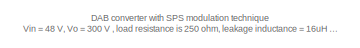
[diagram: root canvas - part 1/3, top left region]
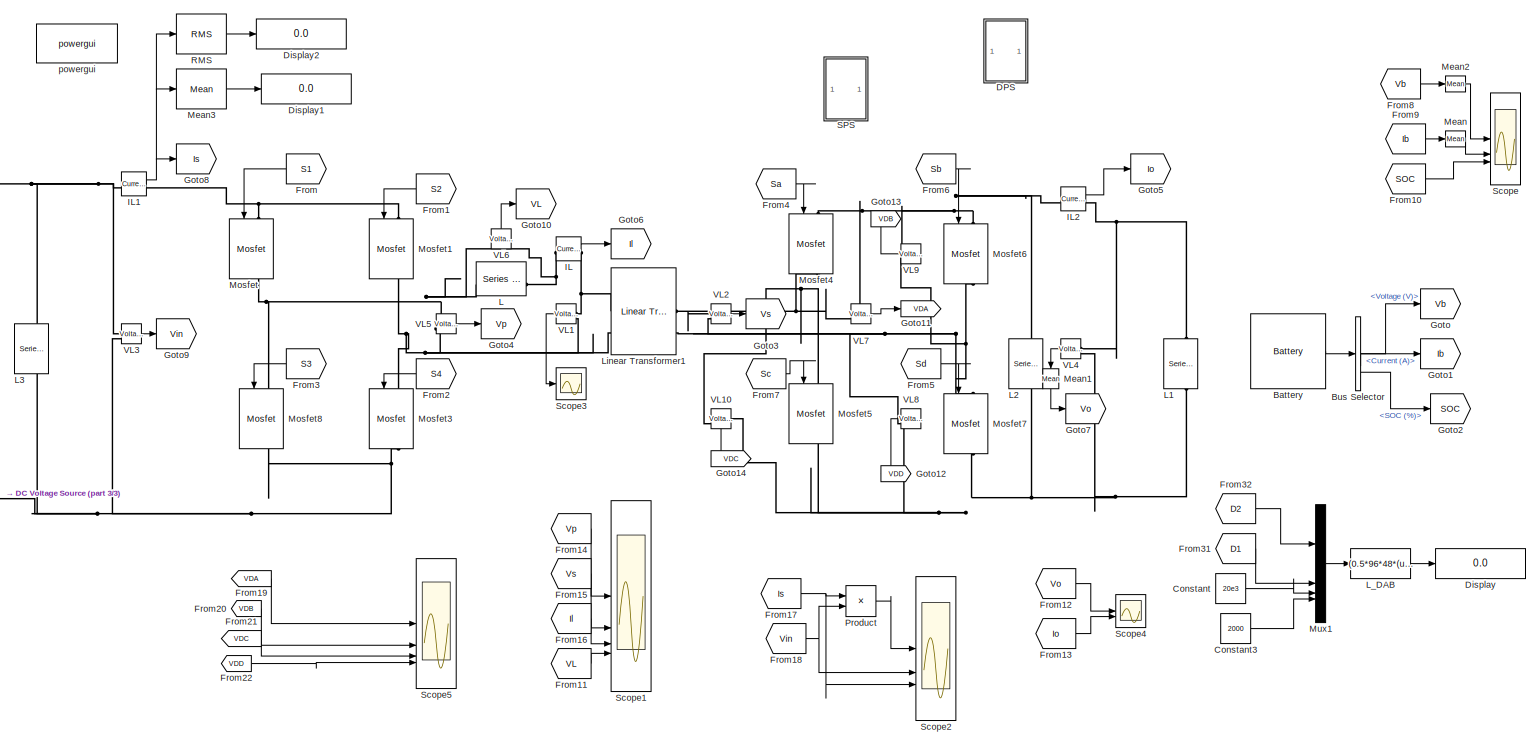
[diagram: root canvas - part 2/3, most of the canvas]
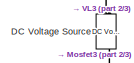
[diagram: root canvas - part 3/3, middle left region]
MODEL slx_aafc65f4591c
KIND model
CONFIG AbsTol = auto
CONFIG EnableMultiTasking = off
CONFIG FixedStep = auto
CONFIG MaxStep = auto
CONFIG MinStep = auto
CONFIG RelTol = 1e-3
CONFIG SampleTimeConstraint = Unconstrained
CONFIG SolverName = VariableStepAuto
CONFIG StartTime = 0.0
CONFIG StopTime = 5
BLOCK [Reference] Battery  REF=spsBatteryLib/Battery
  Commented = on
  SourceBlock = spsBatteryLib/Battery
  SourceType = Battery
BLOCK [BusSelector] Bus Selector
  Commented = on
  OutputSignals = Voltage (V),Current (A),SOC (%)
BLOCK [Constant] Constant
  Commented = on
  Value = 20e3
BLOCK [Constant] Constant3
  Commented = on
  Value = 2000
BLOCK [Reference] DC Voltage Source  REF=spsDCVoltageSourceLib/DC Voltage Source
  SourceBlock = spsDCVoltageSourceLib/DC Voltage Source
  SourceType = DC Voltage Source
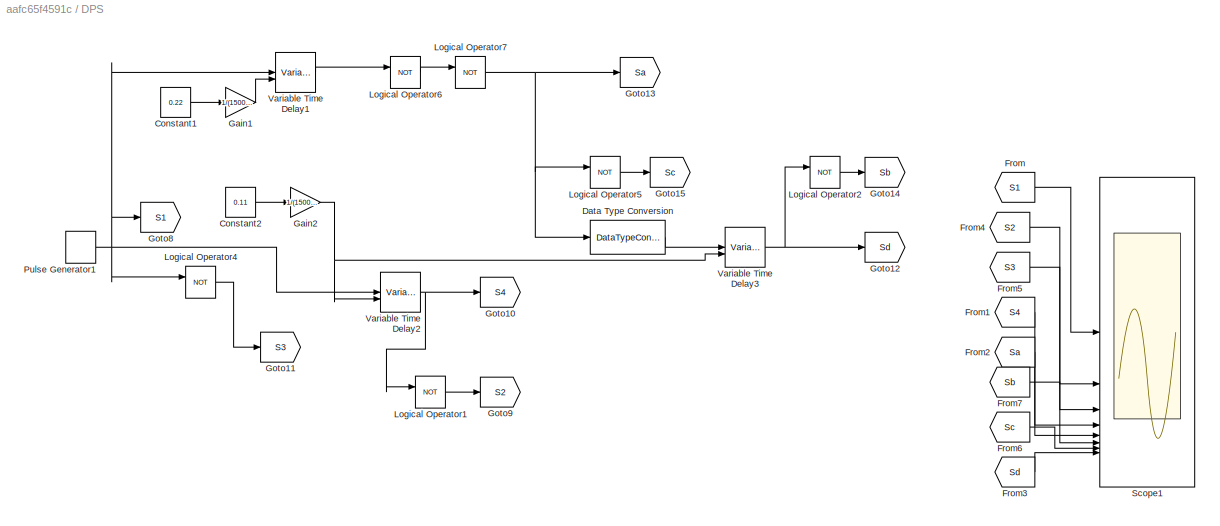
BLOCK [SubSystem] DPS
  Commented = on
BLOCK [Constant] DPS/Constant1
  Value = 0.22
BLOCK [Constant] DPS/Constant2
  Value = 0.11
BLOCK [DataTypeConversion] DPS/Data Type Conversion
  RndMeth = Floor
  SaturateOnIntegerOverflow = off
BLOCK [From] DPS/From
  GotoTag = S1
  NameLocation = top
  TagVisibility = global
BLOCK [From] DPS/From1
  GotoTag = S4
  TagVisibility = global
BLOCK [From] DPS/From2
  GotoTag = Sa
  TagVisibility = global
BLOCK [From] DPS/From3
  GotoTag = Sd
  TagVisibility = global
BLOCK [From] DPS/From4
  GotoTag = S2
  TagVisibility = global
BLOCK [From] DPS/From5
  GotoTag = S3
  TagVisibility = global
BLOCK [From] DPS/From6
  GotoTag = Sc
  TagVisibility = global
BLOCK [From] DPS/From7
  GotoTag = Sb
  TagVisibility = global
BLOCK [Gain] DPS/Gain1
  Gain = 1/(15000*2)
BLOCK [Gain] DPS/Gain2
  Gain = 1/(15000*2)
BLOCK [Goto] DPS/Goto10
  GotoTag = S4
  TagVisibility = global
BLOCK [Goto] DPS/Goto11
  GotoTag = S3
  TagVisibility = global
BLOCK [Goto] DPS/Goto12
  GotoTag = Sd
  TagVisibility = global
BLOCK [Goto] DPS/Goto13
  GotoTag = Sa
  TagVisibility = global
BLOCK [Goto] DPS/Goto14
  GotoTag = Sb
  TagVisibility = global
BLOCK [Goto] DPS/Goto15
  GotoTag = Sc
  TagVisibility = global
BLOCK [Goto] DPS/Goto8
  GotoTag = S1
  TagVisibility = global
BLOCK [Goto] DPS/Goto9
  GotoTag = S2
  TagVisibility = global
BLOCK [Logic] DPS/Logical Operator1
  AllPortsSameDT = off
  Operator = NOT
  OutDataTypeStr = boolean
BLOCK [Logic] DPS/Logical Operator2
  AllPortsSameDT = off
  Operator = NOT
  OutDataTypeStr = boolean
BLOCK [Logic] DPS/Logical Operator4
  AllPortsSameDT = off
  Operator = NOT
  OutDataTypeStr = boolean
BLOCK [Logic] DPS/Logical Operator5
  AllPortsSameDT = off
  Operator = NOT
  OutDataTypeStr = boolean
BLOCK [Logic] DPS/Logical Operator6
  AllPortsSameDT = off
  Operator = NOT
  OutDataTypeStr = boolean
BLOCK [Logic] DPS/Logical Operator7
  AllPortsSameDT = off
  Operator = NOT
  OutDataTypeStr = boolean
BLOCK [DiscretePulseGenerator] DPS/Pulse Generator1
  Period = 1/(15000*2)
  PulseType = Time based
  PulseWidth = 50
BLOCK [Scope] DPS/Scope1
  Floating = off
  NumInputPorts = 8
  ScopeSpecificationString = Simulink.scopes.TimeScopeBlockCfg('CurrentConfiguration', extmgr.ConfigurationSet(extmgr.Configuration('Core','General UI',true),extmgr.Configuration('Core','Source UI',true),extmgr.Configuration('Sources','WiredSimulink',true,'DataLoggingVariableName','ScopeData1'),extmgr.Configuration('Visuals','Time Domain',true,'SerializedDisplays',{struct('MinYLimReal','-0.125','MaxYLimReal','1.125','YLabelRe...<+3911ch>
BLOCK [VariableTransportDelay] DPS/Variable Time Delay1
  MaximumDelay = 10
BLOCK [VariableTransportDelay] DPS/Variable Time Delay2
  MaximumDelay = 10
BLOCK [VariableTransportDelay] DPS/Variable Time Delay3
  MaximumDelay = 10
BLOCK [Display] Display
  Commented = on
  Decimation = 1
BLOCK [Display] Display1
  Decimation = 1
BLOCK [Display] Display2
  Decimation = 1
BLOCK [From] From
  GotoTag = S1
  NameLocation = top
  TagVisibility = global
BLOCK [From] From1
  GotoTag = S2
  NameLocation = top
  TagVisibility = global
BLOCK [From] From10
  Commented = on
  GotoTag = SOC
  TagVisibility = global
BLOCK [From] From11
  GotoTag = VL
  TagVisibility = global
BLOCK [From] From12
  GotoTag = Vo
  TagVisibility = global
BLOCK [From] From13
  GotoTag = Io
  TagVisibility = global
BLOCK [From] From14
  GotoTag = Vp
  NameLocation = top
  TagVisibility = global
BLOCK [From] From15
  GotoTag = Vs
  TagVisibility = global
BLOCK [From] From16
  GotoTag = Il
  TagVisibility = global
BLOCK [From] From17
  GotoTag = Is
  TagVisibility = global
BLOCK [From] From18
  GotoTag = Vin
  TagVisibility = global
BLOCK [From] From19
  GotoTag = VDA
BLOCK [From] From2
  GotoTag = S4
  NameLocation = top
  TagVisibility = global
BLOCK [From] From20
  GotoTag = VDB
BLOCK [From] From21
  GotoTag = VDC
BLOCK [From] From22
  GotoTag = VDD
BLOCK [From] From3
  GotoTag = S3
  NameLocation = top
  TagVisibility = global
BLOCK [From] From31
  Commented = on
  GotoTag = D1
  TagVisibility = global
BLOCK [From] From32
  Commented = on
  GotoTag = D2
  TagVisibility = global
BLOCK [From] From4
  GotoTag = Sa
  TagVisibility = global
BLOCK [From] From5
  GotoTag = Sd
  TagVisibility = global
BLOCK [From] From6
  GotoTag = Sb
  TagVisibility = global
BLOCK [From] From7
  GotoTag = Sc
  TagVisibility = global
BLOCK [From] From8
  Commented = on
  GotoTag = Vb
  TagVisibility = global
BLOCK [From] From9
  Commented = on
  GotoTag = Ib
  TagVisibility = global
BLOCK [Goto] Goto
  Commented = on
  GotoTag = Vb
  TagVisibility = global
BLOCK [Goto] Goto1
  Commented = on
  GotoTag = Ib
  TagVisibility = global
BLOCK [Goto] Goto10
  GotoTag = VL
  TagVisibility = global
BLOCK [Goto] Goto11
  GotoTag = VDA
BLOCK [Goto] Goto12
  GotoTag = VDD
BLOCK [Goto] Goto13
  GotoTag = VDB
BLOCK [Goto] Goto14
  GotoTag = VDC
BLOCK [Goto] Goto2
  Commented = on
  GotoTag = SOC
  TagVisibility = global
BLOCK [Goto] Goto3
  GotoTag = Vs
  TagVisibility = global
BLOCK [Goto] Goto4
  GotoTag = Vp
  TagVisibility = global
BLOCK [Goto] Goto5
  GotoTag = Io
  TagVisibility = global
BLOCK [Goto] Goto6
  GotoTag = Il
  TagVisibility = global
BLOCK [Goto] Goto7
  GotoTag = Vo
  TagVisibility = global
BLOCK [Goto] Goto8
  GotoTag = Is
  TagVisibility = global
BLOCK [Goto] Goto9
  GotoTag = Vin
  TagVisibility = global
BLOCK [Reference] IL  REF=spsCurrentMeasurementLib/Current Measurement
  SourceBlock = spsCurrentMeasurementLib/Current Measurement
  SourceType = Current Measurement
  UserDataPersistent = on
BLOCK [Reference] IL1  REF=spsCurrentMeasurementLib/Current Measurement
  SourceBlock = spsCurrentMeasurementLib/Current Measurement
  SourceType = Current Measurement
  UserDataPersistent = on
BLOCK [Reference] IL2  REF=spsCurrentMeasurementLib/Current Measurement
  SourceBlock = spsCurrentMeasurementLib/Current Measurement
  SourceType = Current Measurement
  UserDataPersistent = on
BLOCK [Reference] L  REF=spsSeriesRLCBranchLib/Series RLC Branch
  SourceBlock = spsSeriesRLCBranchLib/Series RLC Branch
  SourceType = Series RLC Branch
BLOCK [Reference] L1  REF=spsSeriesRLCBranchLib/Series RLC Branch
  NameLocation = left
  SourceBlock = spsSeriesRLCBranchLib/Series RLC Branch
  SourceType = Series RLC Branch
BLOCK [Reference] L2  REF=spsSeriesRLCBranchLib/Series RLC Branch
  NameLocation = left
  SourceBlock = spsSeriesRLCBranchLib/Series RLC Branch
  SourceType = Series RLC Branch
BLOCK [Reference] L3  REF=spsSeriesRLCBranchLib/Series RLC Branch
  NameLocation = left
  SourceBlock = spsSeriesRLCBranchLib/Series RLC Branch
  SourceType = Series RLC Branch
BLOCK [Fcn] L_DAB
  Commented = on
  Expr = (0.5*96*48*(u[1]*(1-u[1])+((u[2]/2)*(1-u[2]-(2*u[1])))))/(2*u[3]*u[4])
BLOCK [Reference] Linear Transformer1  REF=spsLinearTransformerLib/Linear Transformer
  SourceBlock = spsLinearTransformerLib/Linear Transformer
  SourceType = Linear Transformer
BLOCK [Reference] Mean  REF=spsMeanLib/Mean
  Commented = on
  SourceBlock = spsMeanLib/Mean
  SourceType = Mean
BLOCK [Reference] Mean1  REF=spsMeanLib/Mean
  NameLocation = left
  SourceBlock = spsMeanLib/Mean
  SourceType = Mean
BLOCK [Reference] Mean2  REF=spsMeanLib/Mean
  Commented = on
  SourceBlock = spsMeanLib/Mean
  SourceType = Mean
BLOCK [Reference] Mean3  REF=spsMeanLib/Mean
  SourceBlock = spsMeanLib/Mean
  SourceType = Mean
BLOCK [Reference] Mosfet  REF=spsMosfetLib/Mosfet
  NameLocation = left
  SourceBlock = spsMosfetLib/Mosfet
  SourceType = Mosfet
BLOCK [Reference] Mosfet1  REF=spsMosfetLib/Mosfet
  NameLocation = left
  SourceBlock = spsMosfetLib/Mosfet
  SourceType = Mosfet
BLOCK [Reference] Mosfet3  REF=spsMosfetLib/Mosfet
  NameLocation = left
  SourceBlock = spsMosfetLib/Mosfet
  SourceType = Mosfet
BLOCK [Reference] Mosfet4  REF=spsMosfetLib/Mosfet
  NameLocation = left
  SourceBlock = spsMosfetLib/Mosfet
  SourceType = Mosfet
BLOCK [Reference] Mosfet5  REF=spsMosfetLib/Mosfet
  NameLocation = left
  SourceBlock = spsMosfetLib/Mosfet
  SourceType = Mosfet
BLOCK [Reference] Mosfet6  REF=spsMosfetLib/Mosfet
  NameLocation = left
  SourceBlock = spsMosfetLib/Mosfet
  SourceType = Mosfet
BLOCK [Reference] Mosfet7  REF=spsMosfetLib/Mosfet
  NameLocation = left
  SourceBlock = spsMosfetLib/Mosfet
  SourceType = Mosfet
BLOCK [Reference] Mosfet8  REF=spsMosfetLib/Mosfet
  NameLocation = left
  SourceBlock = spsMosfetLib/Mosfet
  SourceType = Mosfet
BLOCK [Mux] Mux1
  Commented = on
  DisplayOption = bar
BLOCK [Product] Product
BLOCK [Reference] RMS  REF=spsRMSLib/RMS
  SourceBlock = spsRMSLib/RMS
  SourceType = RMS
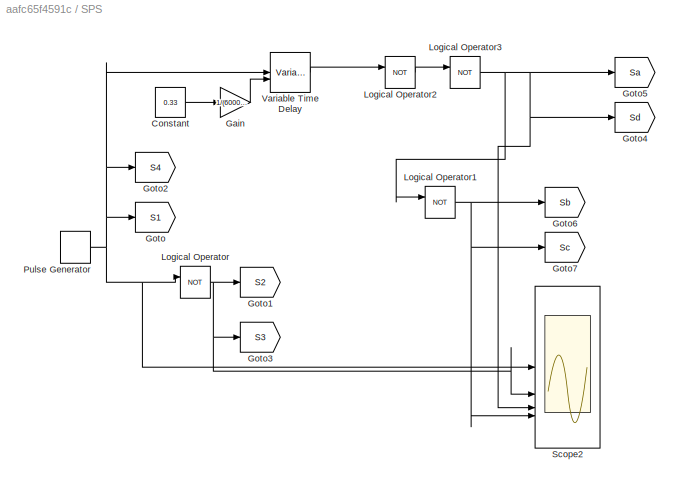
BLOCK [SubSystem] SPS
BLOCK [Constant] SPS/Constant
  Value = 0.33
BLOCK [Gain] SPS/Gain
  Gain = 1/(60000)
BLOCK [Goto] SPS/Goto
  GotoTag = S1
  TagVisibility = global
BLOCK [Goto] SPS/Goto1
  GotoTag = S2
  TagVisibility = global
BLOCK [Goto] SPS/Goto2
  GotoTag = S4
  TagVisibility = global
BLOCK [Goto] SPS/Goto3
  GotoTag = S3
  TagVisibility = global
BLOCK [Goto] SPS/Goto4
  GotoTag = Sd
  TagVisibility = global
BLOCK [Goto] SPS/Goto5
  GotoTag = Sa
  TagVisibility = global
BLOCK [Goto] SPS/Goto6
  GotoTag = Sb
  TagVisibility = global
BLOCK [Goto] SPS/Goto7
  GotoTag = Sc
  TagVisibility = global
BLOCK [Logic] SPS/Logical Operator
  AllPortsSameDT = off
  Operator = NOT
  OutDataTypeStr = boolean
BLOCK [Logic] SPS/Logical Operator1
  AllPortsSameDT = off
  Operator = NOT
  OutDataTypeStr = boolean
BLOCK [Logic] SPS/Logical Operator2
  AllPortsSameDT = off
  Operator = NOT
  OutDataTypeStr = boolean
BLOCK [Logic] SPS/Logical Operator3
  AllPortsSameDT = off
  Operator = NOT
  OutDataTypeStr = boolean
BLOCK [DiscretePulseGenerator] SPS/Pulse Generator
  Period = 1/(60000)
  PulseType = Time based
  PulseWidth = 50
BLOCK [Scope] SPS/Scope2
  Floating = off
  NumInputPorts = 4
  ScopeSpecificationString = Simulink.scopes.TimeScopeBlockCfg('CurrentConfiguration', extmgr.ConfigurationSet(extmgr.Configuration('Core','General UI',true),extmgr.Configuration('Core','Source UI',true),extmgr.Configuration('Sources','WiredSimulink',true,'DataLoggingVariableName','ScopeData1'),extmgr.Configuration('Visuals','Time Domain',true,'SerializedDisplays',{struct('MinYLimReal','-0.125','MaxYLimReal','1.125','YLabelRe...<+3836ch>
BLOCK [VariableTransportDelay] SPS/Variable Time Delay
  MaximumDelay = 10
BLOCK [Scope] Scope
  Commented = on
  Floating = off
  NumInputPorts = 3
  ScopeSpecificationString = Simulink.scopes.TimeScopeBlockCfg('CurrentConfiguration', extmgr.ConfigurationSet(extmgr.Configuration('Core','General UI',true),extmgr.Configuration('Core','Source UI',true),extmgr.Configuration('Sources','WiredSimulink',true,'DataLoggingVariableName','ScopeData1'),extmgr.Configuration('Visuals','Time Domain',true,'SerializedDisplays',{struct('MinYLimReal','-6.53854','MaxYLimReal','58.84683','YLa...<+2748ch>
BLOCK [Scope] Scope1
  Floating = off
  NumInputPorts = 4
  ScopeSpecificationString = Simulink.scopes.TimeScopeBlockCfg('CurrentConfiguration', extmgr.ConfigurationSet(extmgr.Configuration('Core','General UI',true),extmgr.Configuration('Core','Source UI',true),extmgr.Configuration('Sources','WiredSimulink',true,'DataLoggingVariableName','ScopeData2'),extmgr.Configuration('Visuals','Time Domain',true,'SerializedDisplays',{struct('MinYLimReal','-60.5141','MaxYLimReal','60.30564','YLa...<+3779ch>
BLOCK [Scope] Scope2
  Floating = off
  NumInputPorts = 3
  ScopeSpecificationString = Simulink.scopes.TimeScopeBlockCfg('CurrentConfiguration', extmgr.ConfigurationSet(extmgr.Configuration('Core','General UI',true),extmgr.Configuration('Core','Source UI',true),extmgr.Configuration('Sources','WiredSimulink',true,'DataLoggingVariableName','ScopeData3'),extmgr.Configuration('Visuals','Time Domain',true,'SerializedDisplays',{struct('MinYLimReal','-1682.73685','MaxYLimReal','1683.74977'...<+2727ch>
BLOCK [Scope] Scope3
  Floating = off
  NumInputPorts = 1
  ScopeSpecificationString = Simulink.scopes.TimeScopeBlockCfg('CurrentConfiguration', extmgr.ConfigurationSet(extmgr.Configuration('Core','General UI',true),extmgr.Configuration('Core','Source UI',true),extmgr.Configuration('Sources','WiredSimulink',true,'DataLoggingVariableName','ScopeData4'),extmgr.Configuration('Visuals','Time Domain',true,'SerializedDisplays',{struct('MinYLimReal','-45.76909','MaxYLimReal','45.76896','YL...<+1411ch>
BLOCK [Scope] Scope4
  Floating = off
  NumInputPorts = 2
  ScopeSpecificationString = Simulink.scopes.TimeScopeBlockCfg('CurrentConfiguration', extmgr.ConfigurationSet(extmgr.Configuration('Core','General UI',true),extmgr.Configuration('Core','Source UI',true),extmgr.Configuration('Sources','WiredSimulink',true,'DataLoggingVariableName','ScopeData5'),extmgr.Configuration('Visuals','Time Domain',true,'SerializedDisplays',{struct('MinYLimReal','-43.17785','MaxYLimReal','388.60067','Y...<+2385ch>
BLOCK [Scope] Scope5
  Floating = off
  NumInputPorts = 4
  ScopeSpecificationString = Simulink.scopes.TimeScopeBlockCfg('CurrentConfiguration', extmgr.ConfigurationSet(extmgr.Configuration('Core','General UI',true),extmgr.Configuration('Core','Source UI',true),extmgr.Configuration('Sources','WiredSimulink',true,'DataLoggingVariableName','ScopeData1'),extmgr.Configuration('Visuals','Time Domain',true,'SerializedDisplays',{struct('MinYLimReal','-37.25374','MaxYLimReal','334.6279','YL...<+3835ch>
BLOCK [Reference] VL1  REF=spsVoltageMeasurementLib/Voltage Measurement
  NameLocation = top
  SourceBlock = spsVoltageMeasurementLib/Voltage Measurement
  SourceType = Voltage Measurement
  UserDataPersistent = on
BLOCK [Reference] VL10  REF=spsVoltageMeasurementLib/Voltage Measurement
  NameLocation = top
  SourceBlock = spsVoltageMeasurementLib/Voltage Measurement
  SourceType = Voltage Measurement
  UserDataPersistent = on
BLOCK [Reference] VL2  REF=spsVoltageMeasurementLib/Voltage Measurement
  SourceBlock = spsVoltageMeasurementLib/Voltage Measurement
  SourceType = Voltage Measurement
  UserDataPersistent = on
BLOCK [Reference] VL3  REF=spsVoltageMeasurementLib/Voltage Measurement
  SourceBlock = spsVoltageMeasurementLib/Voltage Measurement
  SourceType = Voltage Measurement
  UserDataPersistent = on
BLOCK [Reference] VL4  REF=spsVoltageMeasurementLib/Voltage Measurement
  NameLocation = top
  SourceBlock = spsVoltageMeasurementLib/Voltage Measurement
  SourceType = Voltage Measurement
  UserDataPersistent = on
BLOCK [Reference] VL5  REF=spsVoltageMeasurementLib/Voltage Measurement
  SourceBlock = spsVoltageMeasurementLib/Voltage Measurement
  SourceType = Voltage Measurement
  UserDataPersistent = on
BLOCK [Reference] VL6  REF=spsVoltageMeasurementLib/Voltage Measurement
  NameLocation = right
  SourceBlock = spsVoltageMeasurementLib/Voltage Measurement
  SourceType = Voltage Measurement
  UserDataPersistent = on
BLOCK [Reference] VL7  REF=spsVoltageMeasurementLib/Voltage Measurement
  SourceBlock = spsVoltageMeasurementLib/Voltage Measurement
  SourceType = Voltage Measurement
  UserDataPersistent = on
BLOCK [Reference] VL8  REF=spsVoltageMeasurementLib/Voltage Measurement
  NameLocation = top
  SourceBlock = spsVoltageMeasurementLib/Voltage Measurement
  SourceType = Voltage Measurement
  UserDataPersistent = on
BLOCK [Reference] VL9  REF=spsVoltageMeasurementLib/Voltage Measurement
  NameLocation = top
  SourceBlock = spsVoltageMeasurementLib/Voltage Measurement
  SourceType = Voltage Measurement
  UserDataPersistent = on
BLOCK [Reference] powergui  REF=spspowerguiLib/powergui
  Priority = 1
  SourceBlock = spspowerguiLib/powergui
  SourceType = PSB option menu block
ANNOTATION (root): DAB converter with SPS modulation technique Vin = 48 V, Vo = 300 V , load resistance is 250 ohm, leakage inductance = 16uH with a phase shift of 20 degrees
LINE Battery:1 -> Bus Selector:1
LINE Bus Selector:1 -> Goto:1
LINE Bus Selector:2 -> Goto1:1
LINE Bus Selector:3 -> Goto2:1
LINE Constant3:1 -> Mux1:4
LINE Constant:1 -> Mux1:3
LINE DPS/Constant1:1 -> DPS/Gain1:1
LINE DPS/Constant2:1 -> DPS/Gain2:1
LINE DPS/Data Type Conversion:1 -> DPS/Variable Time Delay3:1
LINE DPS/From1:1 -> DPS/Scope1:4
LINE DPS/From2:1 -> DPS/Scope1:5
LINE DPS/From3:1 -> DPS/Scope1:8
LINE DPS/From4:1 -> DPS/Scope1:2
LINE DPS/From5:1 -> DPS/Scope1:3
LINE DPS/From6:1 -> DPS/Scope1:7
LINE DPS/From7:1 -> DPS/Scope1:6
LINE DPS/From:1 -> DPS/Scope1:1
LINE DPS/Gain1:1 -> DPS/Variable Time Delay1:2
NET DPS/Gain2:1 -> DPS/Variable Time Delay2:2, DPS/Variable Time Delay3:2
LINE DPS/Logical Operator1:1 -> DPS/Goto9:1
LINE DPS/Logical Operator2:1 -> DPS/Goto14:1
LINE DPS/Logical Operator4:1 -> DPS/Goto11:1
LINE DPS/Logical Operator5:1 -> DPS/Goto15:1
LINE DPS/Logical Operator6:1 -> DPS/Logical Operator7:1
NET DPS/Logical Operator7:1 -> DPS/Data Type Conversion:1, DPS/Goto13:1, DPS/Logical Operator5:1
NET DPS/Pulse Generator1:1 -> DPS/Goto8:1, DPS/Logical Operator4:1, DPS/Variable Time Delay1:1, DPS/Variable Time Delay2:1
LINE DPS/Variable Time Delay1:1 -> DPS/Logical Operator6:1
NET DPS/Variable Time Delay2:1 -> DPS/Goto10:1, DPS/Logical Operator1:1
NET DPS/Variable Time Delay3:1 -> DPS/Goto12:1, DPS/Logical Operator2:1
LINE From10:1 -> Scope:3
LINE From11:1 -> Scope1:4
LINE From12:1 -> Scope4:1
LINE From13:1 -> Scope4:2
LINE From14:1 -> Scope1:1
LINE From15:1 -> Scope1:2
LINE From16:1 -> Scope1:3
NET From17:1 -> Product:1, Scope2:3
NET From18:1 -> Product:2, Scope2:2
LINE From19:1 -> Scope5:1
LINE From1:1 -> Mosfet1:1
LINE From20:1 -> Scope5:2
LINE From21:1 -> Scope5:3
LINE From22:1 -> Scope5:4
LINE From2:1 -> Mosfet3:1
LINE From31:1 -> Mux1:2
LINE From32:1 -> Mux1:1
LINE From3:1 -> Mosfet8:1
LINE From4:1 -> Mosfet4:1
LINE From5:1 -> Mosfet7:1
LINE From6:1 -> Mosfet6:1
LINE From7:1 -> Mosfet5:1
LINE From8:1 -> Mean2:1
LINE From9:1 -> Mean:1
LINE From:1 -> Mosfet:1
NET IL1:1 -> Goto8:1, Mean3:1, RMS:1
LINE IL2:1 -> Goto5:1
LINE IL:1 -> Goto6:1
LINE L_DAB:1 -> Display:1
LINE Mean1:1 -> Goto7:1
LINE Mean2:1 -> Scope:1
LINE Mean3:1 -> Display1:1
LINE Mean:1 -> Scope:2
LINE Mux1:1 -> L_DAB:1
LINE Product:1 -> Scope2:1
LINE RMS:1 -> Display2:1
LINE SPS/Constant:1 -> SPS/Gain:1
LINE SPS/Gain:1 -> SPS/Variable Time Delay:2
NET SPS/Logical Operator1:1 -> SPS/Goto6:1, SPS/Goto7:1, SPS/Scope2:4
LINE SPS/Logical Operator2:1 -> SPS/Logical Operator3:1
NET SPS/Logical Operator3:1 -> SPS/Goto4:1, SPS/Goto5:1, SPS/Logical Operator1:1, SPS/Scope2:3
NET SPS/Logical Operator:1 -> SPS/Goto1:1, SPS/Goto3:1, SPS/Scope2:2
NET SPS/Pulse Generator:1 -> SPS/Goto2:1, SPS/Goto:1, SPS/Logical Operator:1, SPS/Scope2:1, SPS/Variable Time Delay:1
LINE SPS/Variable Time Delay:1 -> SPS/Logical Operator2:1
LINE VL10:1 -> Goto14:1
LINE VL1:1 -> Scope3:1
LINE VL2:1 -> Goto3:1
LINE VL3:1 -> Goto9:1
LINE VL4:1 -> Mean1:1
LINE VL5:1 -> Goto4:1
LINE VL6:1 -> Goto10:1
LINE VL7:1 -> Goto11:1
LINE VL8:1 -> Goto12:1
LINE VL9:1 -> Goto13:1
PNET net1: DC Voltage Source:LConn1 -- L3:RConn1 -- Mosfet3:RConn1 -- Mosfet8:RConn1 -- VL3:LConn2
PNET net2: DC Voltage Source:RConn1 -- IL1:LConn1 -- L3:LConn1 -- VL3:LConn1
PNET net3: IL1:RConn1 -- Mosfet1:LConn1 -- Mosfet:LConn1
PNET net4: IL2:LConn1 -- L2:LConn1 -- Mosfet4:LConn1 -- Mosfet6:LConn1 -- VL7:LConn1 -- VL9:LConn2
PNET net5: IL2:RConn1 -- L1:LConn1 -- VL4:LConn1
PNET net6: IL:LConn1 -- L:RConn1 -- VL6:LConn2
PNET net7: IL:RConn1 -- Linear Transformer1:LConn1 -- VL1:LConn1
PNET net8: L1:RConn1 -- L2:RConn1 -- Mosfet5:RConn1 -- Mosfet7:RConn1 -- VL10:LConn1 -- VL4:LConn2 -- VL8:LConn1
PNET net9: L:LConn1 -- Mosfet8:LConn1 -- Mosfet:RConn1 -- VL5:LConn1 -- VL6:LConn1
PNET net10: Linear Transformer1:LConn2 -- Mosfet1:RConn1 -- Mosfet3:LConn1 -- VL1:LConn2 -- VL5:LConn2
PNET net11: Linear Transformer1:RConn1 -- Mosfet4:RConn1 -- Mosfet5:LConn1 -- VL10:LConn2 -- VL2:LConn1 -- VL7:LConn2
PNET net12: Linear Transformer1:RConn2 -- Mosfet6:RConn1 -- Mosfet7:LConn1 -- VL2:LConn2 -- VL8:LConn2 -- VL9:LConn1
note: NET lines group one-source signal fan-out (src -> all destinations, sorted); 1:1 wires keep LINE; PNET lines group multi-terminal physical nets as a canonical sorted terminal list (undirected conserving connections); 2-terminal nets keep the pairwise PLINE form
